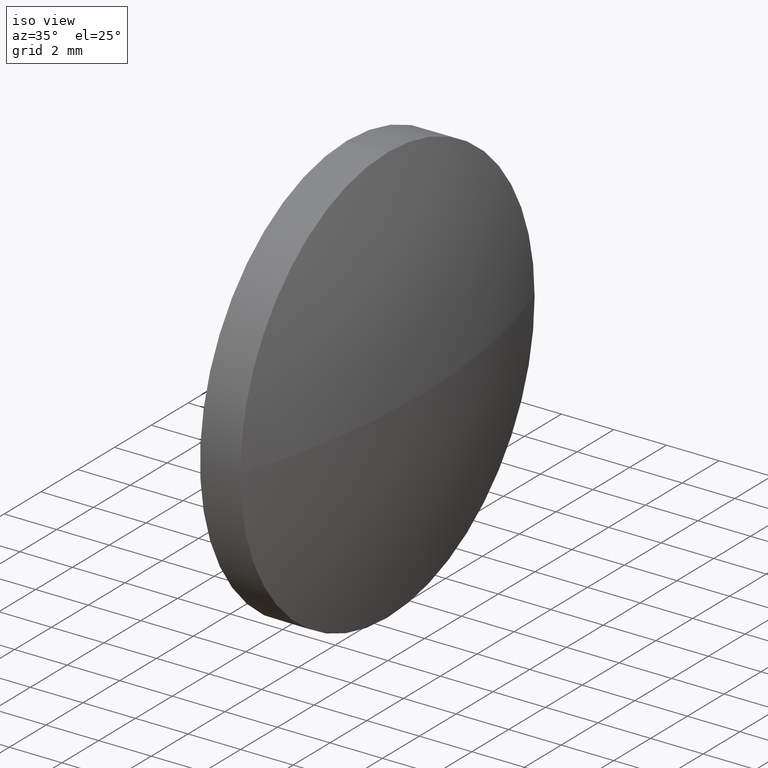
[diagram: clean part render]
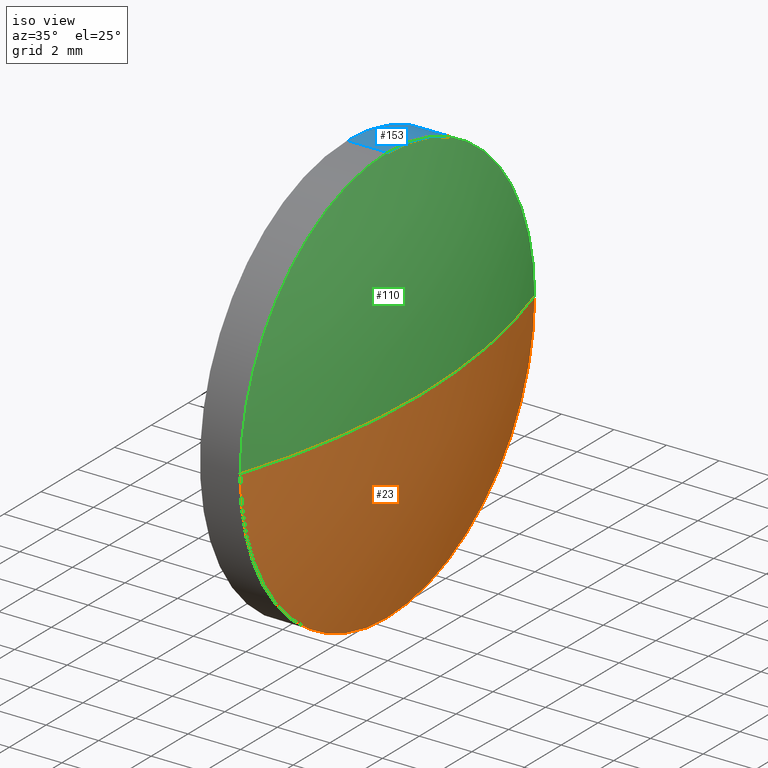
[diagram: same view with three faces highlighted in distinct colors, each labeled with its STEP entity id]
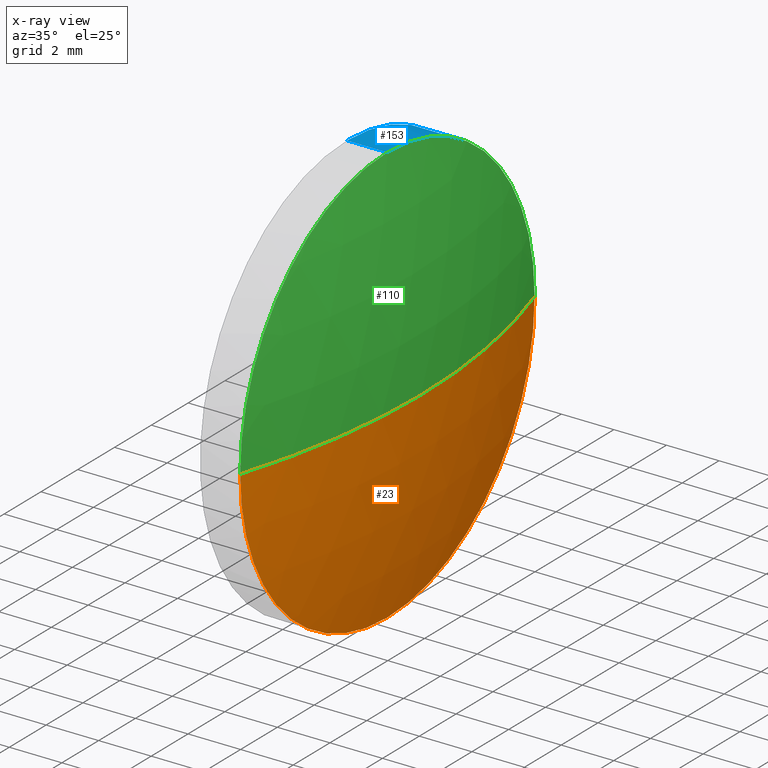
[diagram: x-ray of the same camera — body ghosted, the three highlighted faces saturated]
A machine part, iso view with three faces highlighted in distinct colors.
The next image is the same camera in x-ray (body ghosted, the three faces saturated) — at least one of them is partly hidden behind the body in this view.
Their STEP definitions:

[orange] entity #23 — the highlighted spherical surface has radius 25.8319 mm.
#2 = DIRECTION ( 'NONE',  ( -0.0000000000000000000, 0.0000000000000000000, 1.000000000000000000 ) ) ;
#3 = VERTEX_POINT ( 'NONE', #49 ) ;
#7 = VERTEX_POINT ( 'NONE', #14 ) ;
#8 = SPHERICAL_SURFACE ( 'NONE', #79, 25.83185039370084000 ) ;
#9 = VERTEX_POINT ( 'NONE', #62 ) ;
#14 = CARTESIAN_POINT ( 'NONE',  ( 684.5935508571371900, 205.9901794315100300, -7.999999999999979600 ) ) ;
#23 = ADVANCED_FACE ( 'NONE', ( #56 ), #8, .T. ) ;
#24 = CARTESIAN_POINT ( 'NONE',  ( 684.5935508571371900, 197.9901794315100300, -9.797174393178804000E-016 ) ) ;
#25 = ORIENTED_EDGE ( 'NONE', *, *, #106, .F. ) ;
#26 = CARTESIAN_POINT ( 'NONE',  ( 660.0317004634364400, 205.9901794315100300, 0.0000000000000000000 ) ) ;
#27 = DIRECTION ( 'NONE',  ( 0.0000000000000000000, 0.0000000000000000000, 1.000000000000000000 ) ) ;
#30 = ORIENTED_EDGE ( 'NONE', *, *, #69, .F. ) ;
#32 = DIRECTION ( 'NONE',  ( -0.0000000000000000000, 0.0000000000000000000, -1.000000000000000000 ) ) ;
#33 = AXIS2_PLACEMENT_3D ( 'NONE', #34, #2, #41 ) ;
#34 = CARTESIAN_POINT ( 'NONE',  ( 660.0317004634364400, 205.9901794315100300, 0.0000000000000000000 ) ) ;
#41 = DIRECTION ( 'NONE',  ( 1.000000000000000000, 0.0000000000000000000, 0.0000000000000000000 ) ) ;
#49 = CARTESIAN_POINT ( 'NONE',  ( 684.5935508571371900, 213.9901794315100000, 0.0000000000000000000 ) ) ;
#56 = FACE_OUTER_BOUND ( 'NONE', #168, .T. ) ;
#62 = CARTESIAN_POINT ( 'NONE',  ( 685.8635508571372800, 205.9901794315100300, 0.0000000000000000000 ) ) ;
#64 = DIRECTION ( 'NONE',  ( 0.0000000000000000000, 1.000000000000000000, 1.224646799147353200E-016 ) ) ;
#69 = EDGE_CURVE ( 'NONE', #9, #3, #186, .T. ) ;
#75 = EDGE_CURVE ( 'NONE', #9, #155, #149, .T. ) ;
#79 = AXIS2_PLACEMENT_3D ( 'NONE', #26, #32, #122 ) ;
#81 = CARTESIAN_POINT ( 'NONE',  ( 660.0317004634364400, 205.9901794315100300, 0.0000000000000000000 ) ) ;
#95 = DIRECTION ( 'NONE',  ( -1.000000000000000000, -0.0000000000000000000, -0.0000000000000000000 ) ) ;
#102 = ORIENTED_EDGE ( 'NONE', *, *, #133, .F. ) ;
#105 = DIRECTION ( 'NONE',  ( 0.0000000000000000000, 0.0000000000000000000, 1.000000000000000000 ) ) ;
#106 = EDGE_CURVE ( 'NONE', #7, #155, #181, .T. ) ;
#115 = DIRECTION ( 'NONE',  ( -1.000000000000000000, -0.0000000000000000000, -0.0000000000000000000 ) ) ;
#119 = ORIENTED_EDGE ( 'NONE', *, *, #75, .T. ) ;
#122 = DIRECTION ( 'NONE',  ( 0.0000000000000000000, 1.000000000000000000, 0.0000000000000000000 ) ) ;
#129 = CARTESIAN_POINT ( 'NONE',  ( 684.5935508571371900, 205.9901794315100300, 0.0000000000000000000 ) ) ;
#130 = DIRECTION ( 'NONE',  ( 0.0000000000000000000, 1.224646799147353200E-016, -1.000000000000000000 ) ) ;
#133 = EDGE_CURVE ( 'NONE', #3, #7, #142, .T. ) ;
#142 = CIRCLE ( 'NONE', #173, 7.999999999999979600 ) ;
#149 = CIRCLE ( 'NONE', #160, 25.83185039370084000 ) ;
#154 = CARTESIAN_POINT ( 'NONE',  ( 684.5935508571371900, 205.9901794315100300, 0.0000000000000000000 ) ) ;
#155 = VERTEX_POINT ( 'NONE', #24 ) ;
#159 = AXIS2_PLACEMENT_3D ( 'NONE', #129, #95, #105 ) ;
#160 = AXIS2_PLACEMENT_3D ( 'NONE', #81, #130, #64 ) ;
#168 = EDGE_LOOP ( 'NONE', ( #30, #119, #25, #102 ) ) ;
#173 = AXIS2_PLACEMENT_3D ( 'NONE', #154, #115, #27 ) ;
#181 = CIRCLE ( 'NONE', #159, 7.999999999999979600 ) ;
#186 = CIRCLE ( 'NONE', #33, 25.83185039370084000 ) ;

[blue] entity #153 — the highlighted cylindrical surface (partial cylindrical patch) has radius 8 mm, axis along (-1, -0, -0).
#3 = VERTEX_POINT ( 'NONE', #49 ) ;
#4 = DIRECTION ( 'NONE',  ( 0.0000000000000000000, 0.0000000000000000000, 1.000000000000000000 ) ) ;
#5 = AXIS2_PLACEMENT_3D ( 'NONE', #184, #137, #86 ) ;
#7 = VERTEX_POINT ( 'NONE', #14 ) ;
#11 = ORIENTED_EDGE ( 'NONE', *, *, #97, .F. ) ;
#14 = CARTESIAN_POINT ( 'NONE',  ( 684.5935508571371900, 205.9901794315100300, -7.999999999999979600 ) ) ;
#17 = EDGE_CURVE ( 'NONE', #121, #131, #48, .T. ) ;
#18 = LINE ( 'NONE', #156, #100 ) ;
#21 = ORIENTED_EDGE ( 'NONE', *, *, #120, .T. ) ;
#27 = DIRECTION ( 'NONE',  ( 0.0000000000000000000, 0.0000000000000000000, 1.000000000000000000 ) ) ;
#37 = VECTOR ( 'NONE', #47, 1000.000000000000000 ) ;
#42 = AXIS2_PLACEMENT_3D ( 'NONE', #124, #45, #58 ) ;
#45 = DIRECTION ( 'NONE',  ( -1.000000000000000000, -0.0000000000000000000, -0.0000000000000000000 ) ) ;
#47 = DIRECTION ( 'NONE',  ( -1.000000000000000000, -0.0000000000000000000, -0.0000000000000000000 ) ) ;
#48 = LINE ( 'NONE', #175, #37 ) ;
#49 = CARTESIAN_POINT ( 'NONE',  ( 684.5935508571371900, 213.9901794315100000, 0.0000000000000000000 ) ) ;
#52 = VERTEX_POINT ( 'NONE', #141 ) ;
#58 = DIRECTION ( 'NONE',  ( 0.0000000000000000000, 0.0000000000000000000, 1.000000000000000000 ) ) ;
#59 = EDGE_CURVE ( 'NONE', #121, #3, #104, .T. ) ;
#67 = CARTESIAN_POINT ( 'NONE',  ( 683.0635508571372200, 205.9901794315100300, 0.0000000000000000000 ) ) ;
#74 = CARTESIAN_POINT ( 'NONE',  ( 684.5935508571371900, 205.9901794315100300, 7.999999999999979600 ) ) ;
#82 = DIRECTION ( 'NONE',  ( -1.000000000000000000, -0.0000000000000000000, -0.0000000000000000000 ) ) ;
#86 = DIRECTION ( 'NONE',  ( 0.0000000000000000000, 0.0000000000000000000, 1.000000000000000000 ) ) ;
#92 = CYLINDRICAL_SURFACE ( 'NONE', #5, 7.999999999999979600 ) ;
#94 = ORIENTED_EDGE ( 'NONE', *, *, #17, .F. ) ;
#97 = EDGE_CURVE ( 'NONE', #131, #52, #107, .T. ) ;
#98 = EDGE_LOOP ( 'NONE', ( #165, #21, #11, #94, #111 ) ) ;
#100 = VECTOR ( 'NONE', #170, 1000.000000000000000 ) ;
#104 = CIRCLE ( 'NONE', #42, 7.999999999999979600 ) ;
#107 = CIRCLE ( 'NONE', #112, 7.999999999999979600 ) ;
#111 = ORIENTED_EDGE ( 'NONE', *, *, #59, .T. ) ;
#112 = AXIS2_PLACEMENT_3D ( 'NONE', #67, #82, #4 ) ;
#115 = DIRECTION ( 'NONE',  ( -1.000000000000000000, -0.0000000000000000000, -0.0000000000000000000 ) ) ;
#120 = EDGE_CURVE ( 'NONE', #7, #52, #18, .T. ) ;
#121 = VERTEX_POINT ( 'NONE', #74 ) ;
#124 = CARTESIAN_POINT ( 'NONE',  ( 684.5935508571371900, 205.9901794315100300, 0.0000000000000000000 ) ) ;
#131 = VERTEX_POINT ( 'NONE', #166 ) ;
#133 = EDGE_CURVE ( 'NONE', #3, #7, #142, .T. ) ;
#137 = DIRECTION ( 'NONE',  ( -1.000000000000000000, -0.0000000000000000000, -0.0000000000000000000 ) ) ;
#141 = CARTESIAN_POINT ( 'NONE',  ( 683.0635508571372200, 205.9901794315100300, -7.999999999999979600 ) ) ;
#142 = CIRCLE ( 'NONE', #173, 7.999999999999979600 ) ;
#144 = FACE_OUTER_BOUND ( 'NONE', #98, .T. ) ;
#153 = ADVANCED_FACE ( 'NONE', ( #144 ), #92, .T. ) ;
#154 = CARTESIAN_POINT ( 'NONE',  ( 684.5935508571371900, 205.9901794315100300, 0.0000000000000000000 ) ) ;
#156 = CARTESIAN_POINT ( 'NONE',  ( 679.3382822367749400, 205.9901794315100300, -7.999999999999979600 ) ) ;
#165 = ORIENTED_EDGE ( 'NONE', *, *, #133, .T. ) ;
#166 = CARTESIAN_POINT ( 'NONE',  ( 683.0635508571372200, 205.9901794315100300, 7.999999999999979600 ) ) ;
#170 = DIRECTION ( 'NONE',  ( -1.000000000000000000, -0.0000000000000000000, -0.0000000000000000000 ) ) ;
#173 = AXIS2_PLACEMENT_3D ( 'NONE', #154, #115, #27 ) ;
#175 = CARTESIAN_POINT ( 'NONE',  ( 679.3382822367749400, 205.9901794315100300, 7.999999999999979600 ) ) ;
#184 = CARTESIAN_POINT ( 'NONE',  ( 679.3382822367749400, 205.9901794315100300, 0.0000000000000000000 ) ) ;

[green] entity #110 — the highlighted spherical surface has radius 25.8319 mm.
#2 = DIRECTION ( 'NONE',  ( -0.0000000000000000000, 0.0000000000000000000, 1.000000000000000000 ) ) ;
#3 = VERTEX_POINT ( 'NONE', #49 ) ;
#6 = DIRECTION ( 'NONE',  ( -0.0000000000000000000, 0.0000000000000000000, -1.000000000000000000 ) ) ;
#9 = VERTEX_POINT ( 'NONE', #62 ) ;
#10 = DIRECTION ( 'NONE',  ( -1.000000000000000000, -0.0000000000000000000, -0.0000000000000000000 ) ) ;
#12 = SPHERICAL_SURFACE ( 'NONE', #152, 25.83185039370084000 ) ;
#16 = FACE_OUTER_BOUND ( 'NONE', #96, .T. ) ;
#24 = CARTESIAN_POINT ( 'NONE',  ( 684.5935508571371900, 197.9901794315100300, -9.797174393178804000E-016 ) ) ;
#33 = AXIS2_PLACEMENT_3D ( 'NONE', #34, #2, #41 ) ;
#34 = CARTESIAN_POINT ( 'NONE',  ( 660.0317004634364400, 205.9901794315100300, 0.0000000000000000000 ) ) ;
#41 = DIRECTION ( 'NONE',  ( 1.000000000000000000, 0.0000000000000000000, 0.0000000000000000000 ) ) ;
#42 = AXIS2_PLACEMENT_3D ( 'NONE', #124, #45, #58 ) ;
#45 = DIRECTION ( 'NONE',  ( -1.000000000000000000, -0.0000000000000000000, -0.0000000000000000000 ) ) ;
#46 = ORIENTED_EDGE ( 'NONE', *, *, #69, .T. ) ;
#49 = CARTESIAN_POINT ( 'NONE',  ( 684.5935508571371900, 213.9901794315100000, 0.0000000000000000000 ) ) ;
#50 = ORIENTED_EDGE ( 'NONE', *, *, #75, .F. ) ;
#58 = DIRECTION ( 'NONE',  ( 0.0000000000000000000, 0.0000000000000000000, 1.000000000000000000 ) ) ;
#59 = EDGE_CURVE ( 'NONE', #121, #3, #104, .T. ) ;
#62 = CARTESIAN_POINT ( 'NONE',  ( 685.8635508571372800, 205.9901794315100300, 0.0000000000000000000 ) ) ;
#64 = DIRECTION ( 'NONE',  ( 0.0000000000000000000, 1.000000000000000000, 1.224646799147353200E-016 ) ) ;
#69 = EDGE_CURVE ( 'NONE', #9, #3, #186, .T. ) ;
#71 = CARTESIAN_POINT ( 'NONE',  ( 684.5935508571371900, 205.9901794315100300, 0.0000000000000000000 ) ) ;
#74 = CARTESIAN_POINT ( 'NONE',  ( 684.5935508571371900, 205.9901794315100300, 7.999999999999979600 ) ) ;
#75 = EDGE_CURVE ( 'NONE', #9, #155, #149, .T. ) ;
#81 = CARTESIAN_POINT ( 'NONE',  ( 660.0317004634364400, 205.9901794315100300, 0.0000000000000000000 ) ) ;
#87 = DIRECTION ( 'NONE',  ( 0.0000000000000000000, 0.0000000000000000000, 1.000000000000000000 ) ) ;
#96 = EDGE_LOOP ( 'NONE', ( #50, #46, #99, #157 ) ) ;
#99 = ORIENTED_EDGE ( 'NONE', *, *, #59, .F. ) ;
#104 = CIRCLE ( 'NONE', #42, 7.999999999999979600 ) ;
#108 = DIRECTION ( 'NONE',  ( 0.0000000000000000000, 1.000000000000000000, 0.0000000000000000000 ) ) ;
#109 = CIRCLE ( 'NONE', #183, 7.999999999999979600 ) ;
#110 = ADVANCED_FACE ( 'NONE', ( #16 ), #12, .T. ) ;
#121 = VERTEX_POINT ( 'NONE', #74 ) ;
#124 = CARTESIAN_POINT ( 'NONE',  ( 684.5935508571371900, 205.9901794315100300, 0.0000000000000000000 ) ) ;
#127 = CARTESIAN_POINT ( 'NONE',  ( 660.0317004634364400, 205.9901794315100300, 0.0000000000000000000 ) ) ;
#130 = DIRECTION ( 'NONE',  ( 0.0000000000000000000, 1.224646799147353200E-016, -1.000000000000000000 ) ) ;
#149 = CIRCLE ( 'NONE', #160, 25.83185039370084000 ) ;
#152 = AXIS2_PLACEMENT_3D ( 'NONE', #127, #6, #108 ) ;
#155 = VERTEX_POINT ( 'NONE', #24 ) ;
#157 = ORIENTED_EDGE ( 'NONE', *, *, #169, .F. ) ;
#160 = AXIS2_PLACEMENT_3D ( 'NONE', #81, #130, #64 ) ;
#169 = EDGE_CURVE ( 'NONE', #155, #121, #109, .T. ) ;
#183 = AXIS2_PLACEMENT_3D ( 'NONE', #71, #10, #87 ) ;
#186 = CIRCLE ( 'NONE', #33, 25.83185039370084000 ) ;